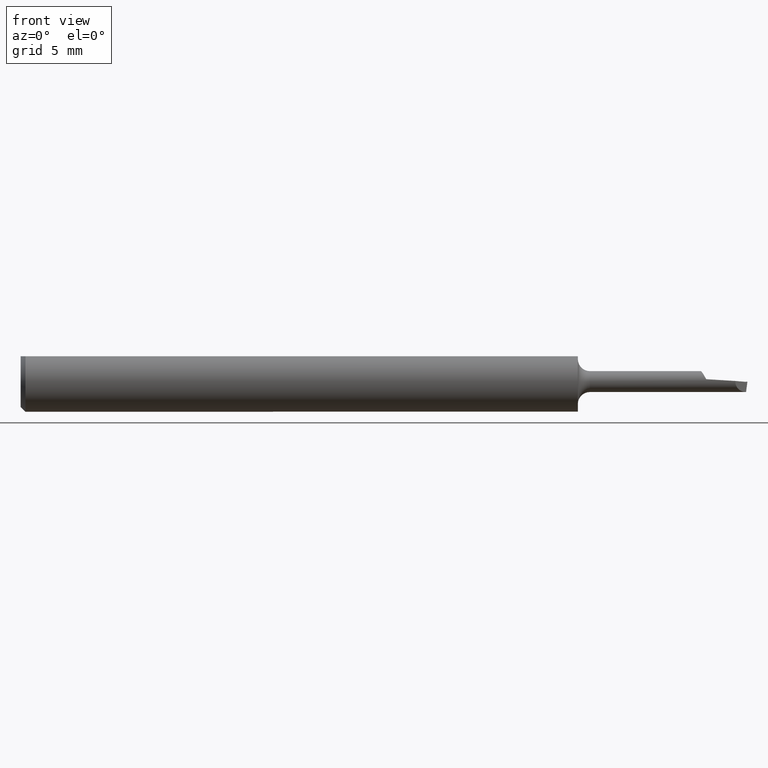
[diagram: clean part render]
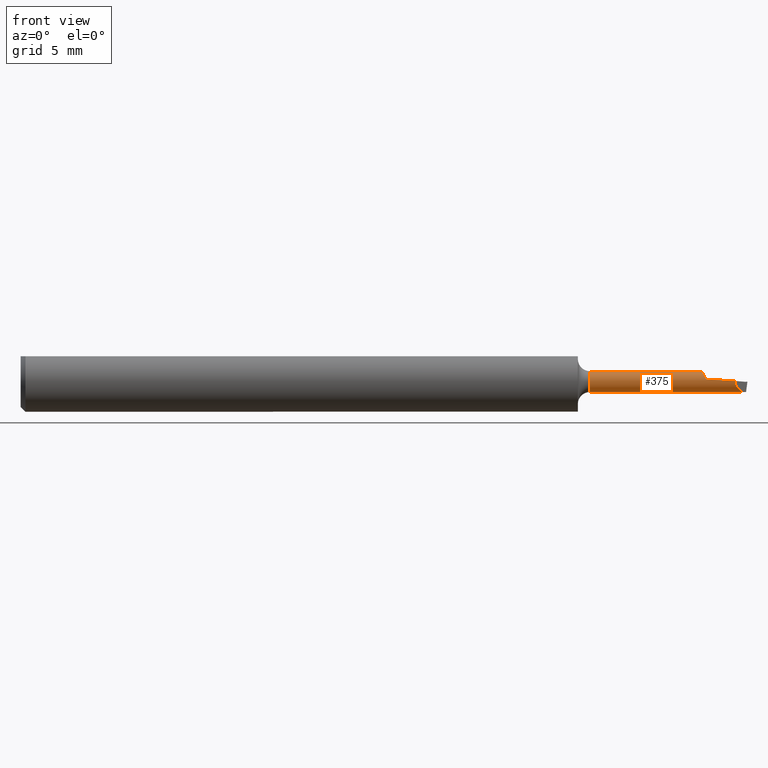
[diagram: same view with one face highlighted and labeled with its STEP entity id]
A machine part, front view. The second image highlights one B-rep face of the part: STEP entity #375.
In plain terms, the highlighted cylindrical surface (edge-blend (fillet) strip) has radius 0.5461 mm, axis along (-1, -0, -0).
Its self-contained STEP definition (entity closure, byte-faithful):
#4 = CARTESIAN_POINT ( 'NONE',  ( 1.404000000000000137, -0.001430936881053231731, 0.02145232900275499330 ) ) ;
#11 = CARTESIAN_POINT ( 'NONE',  ( 1.445131348683456274, -0.02135399945104765954, 0.003140518868011895129 ) ) ;
#12 = ORIENTED_EDGE ( 'NONE', *, *, #134, .F. ) ;
#18 = CARTESIAN_POINT ( 'NONE',  ( 1.405767565616470760, -0.008508376164700823946, 0.02026258715271565813 ) ) ;
#21 = CIRCLE ( 'NONE', #598, 0.02150000000000006420 ) ;
#33 = DIRECTION ( 'NONE',  ( 1.000000000000000000, -0.000000000000000000, -0.000000000000000000 ) ) ;
#51 = DIRECTION ( 'NONE',  ( 0.000000000000000000, 0.000000000000000000, 1.000000000000000000 ) ) ;
#56 = ORIENTED_EDGE ( 'NONE', *, *, #726, .F. ) ;
#66 = VERTEX_POINT ( 'NONE', #4 ) ;
#68 = EDGE_LOOP ( 'NONE', ( #426, #12, #155, #120, #172, #455, #547, #81, #571, #56 ) ) ;
#81 = ORIENTED_EDGE ( 'NONE', *, *, #459, .F. ) ;
#86 = CARTESIAN_POINT ( 'NONE',  ( 0.000000000000000000, 0.000000000000000000, 0.02150000000000002950 ) ) ;
#106 = CARTESIAN_POINT ( 'NONE',  ( 1.425000000000000488, -0.001739341499743084305, -0.02142952848634970334 ) ) ;
#115 = CARTESIAN_POINT ( 'NONE',  ( 1.425000000000000488, 0.000000000000000000, 0.000000000000000000 ) ) ;
#120 = ORIENTED_EDGE ( 'NONE', *, *, #796, .T. ) ;
#134 = EDGE_CURVE ( 'NONE', #429, #676, #211, .T. ) ;
#145 = CARTESIAN_POINT ( 'NONE',  ( 1.425000000000000488, 2.632990618166813195E-18, -0.02150000000000002950 ) ) ;
#146 = CYLINDRICAL_SURFACE ( 'NONE', #482, 0.02150000000000002950 ) ;
#149 = LINE ( 'NONE', #643, #398 ) ;
#155 = ORIENTED_EDGE ( 'NONE', *, *, #390, .T. ) ;
#172 = ORIENTED_EDGE ( 'NONE', *, *, #646, .F. ) ;
#174 = CARTESIAN_POINT ( 'NONE',  ( 1.429772521916677697, -0.0005931283937478291045, -0.02150000000021588462 ) ) ;
#189 = CARTESIAN_POINT ( 'NONE',  ( 1.411853044221901055, -0.01954079743614218351, 0.01074519185527962085 ) ) ;
#197 = AXIS2_PLACEMENT_3D ( 'NONE', #599, #420, #51 ) ;
#205 = CARTESIAN_POINT ( 'NONE',  ( 1.404000000000000137, -0.001430936881053231731, 0.02145232900275499330 ) ) ;
#211 = CIRCLE ( 'NONE', #769, 0.02150000000000002950 ) ;
#219 = EDGE_CURVE ( 'NONE', #325, #435, #229, .T. ) ;
#221 = VERTEX_POINT ( 'NONE', #331 ) ;
#224 = B_SPLINE_CURVE_WITH_KNOTS ( 'NONE', 3,
 ( #106, #666, #174, #790 ),
 .UNSPECIFIED., .F., .F.,
 ( 4, 4 ),
 ( 1.177510931424660416E-05, 0.0001987894760625604363 ),
 .UNSPECIFIED. ) ;
#229 =( BOUNDED_CURVE ( )  B_SPLINE_CURVE ( 2, ( #628, #11, #509 ),
 .UNSPECIFIED., .F., .T. ) 
 B_SPLINE_CURVE_WITH_KNOTS ( ( 3, 3 ),
 ( 0.08309014085609417455, 0.2788747443160921047 ),
 .UNSPECIFIED. ) 
 CURVE ( )  GEOMETRIC_REPRESENTATION_ITEM ( )  RATIONAL_B_SPLINE_CURVE ( ( 0.9808081055425239558, 0.9743343968049049675, 0.9754543227669443262 ) ) 
 REPRESENTATION_ITEM ( '' )  );
#233 =( BOUNDED_CURVE ( )  B_SPLINE_CURVE ( 3, ( #387, #626, #322, #460 ),
 .UNSPECIFIED., .F., .T. ) 
 B_SPLINE_CURVE_WITH_KNOTS ( ( 4, 4 ),
 ( 6.225259102459130389, 7.853981633974480125 ),
 .UNSPECIFIED. ) 
 CURVE ( )  GEOMETRIC_REPRESENTATION_ITEM ( )  RATIONAL_B_SPLINE_CURVE ( ( 1.000000000000000000, 0.7908887178487953307, 0.7908887178487953307, 1.000000000000000000 ) ) 
 REPRESENTATION_ITEM ( '' )  );
#261 = LINE ( 'NONE', #761, #606 ) ;
#277 = VERTEX_POINT ( 'NONE', #687 ) ;
#281 = CARTESIAN_POINT ( 'NONE',  ( 1.475033202637507035, -0.02146393904924248641, 0.001244717032262903289 ) ) ;
#292 = CARTESIAN_POINT ( 'NONE',  ( 0.000000000000000000, 0.000000000000000000, 0.000000000000000000 ) ) ;
#300 = EDGE_CURVE ( 'NONE', #676, #680, #261, .T. ) ;
#314 = DIRECTION ( 'NONE',  ( 0.000000000000000000, 1.776356839400250465E-14, 1.000000000000000000 ) ) ;
#322 = CARTESIAN_POINT ( 'NONE',  ( 1.483316460307294804, -0.01318068137945521516, -0.02149999999999999481 ) ) ;
#324 = DIRECTION ( 'NONE',  ( -1.000000000000000000, -0.000000000000000000, -0.000000000000000000 ) ) ;
#325 = VERTEX_POINT ( 'NONE', #281 ) ;
#331 = CARTESIAN_POINT ( 'NONE',  ( 1.404000000000000137, 0.000000000000000000, 0.02150000000000002950 ) ) ;
#375 = ADVANCED_FACE ( 'NONE', ( #586 ), #146, .T. ) ;
#382 = CARTESIAN_POINT ( 'NONE',  ( 1.409408289388668134, -0.01598937975179732032, 0.01507662555860100027 ) ) ;
#384 = VERTEX_POINT ( 'NONE', #782 ) ;
#387 = CARTESIAN_POINT ( 'NONE',  ( 1.475033202637507035, -0.02146393904924248641, 0.001244717032262903289 ) ) ;
#390 = EDGE_CURVE ( 'NONE', #429, #506, #224, .T. ) ;
#398 = VECTOR ( 'NONE', #33, 39.37007874015748143 ) ;
#399 = CARTESIAN_POINT ( 'NONE',  ( 1.175000000000000488, 0.000000000000000000, 0.000000000000000000 ) ) ;
#400 = DIRECTION ( 'NONE',  ( -1.000000000000000000, -0.000000000000000000, -0.000000000000000000 ) ) ;
#403 = DIRECTION ( 'NONE',  ( 0.000000000000000000, 0.000000000000000000, 1.000000000000000000 ) ) ;
#420 = DIRECTION ( 'NONE',  ( 1.000000000000000000, -0.000000000000000000, -0.000000000000000000 ) ) ;
#426 = ORIENTED_EDGE ( 'NONE', *, *, #300, .F. ) ;
#429 = VERTEX_POINT ( 'NONE', #722 ) ;
#435 = VERTEX_POINT ( 'NONE', #659 ) ;
#455 = ORIENTED_EDGE ( 'NONE', *, *, #219, .T. ) ;
#459 = EDGE_CURVE ( 'NONE', #221, #66, #725, .T. ) ;
#460 = CARTESIAN_POINT ( 'NONE',  ( 1.496497141686749410, 1.280553747030123384E-17, -0.02150000000000006420 ) ) ;
#468 = DIRECTION ( 'NONE',  ( -1.000000000000000000, -0.000000000000000000, -0.000000000000000000 ) ) ;
#482 = AXIS2_PLACEMENT_3D ( 'NONE', #292, #400, #532 ) ;
#506 = VERTEX_POINT ( 'NONE', #674 ) ;
#509 = CARTESIAN_POINT ( 'NONE',  ( 1.414899394003657607, -0.02091346100598579991, 0.004987699745485189157 ) ) ;
#524 = DIRECTION ( 'NONE',  ( -1.000000000000000000, -0.000000000000000000, -0.000000000000000000 ) ) ;
#531 = CARTESIAN_POINT ( 'NONE',  ( 1.175000000000000488, 2.632990618166817432E-18, -0.02150000000000006420 ) ) ;
#532 = DIRECTION ( 'NONE',  ( 0.000000000000000000, 0.000000000000000000, 1.000000000000000000 ) ) ;
#546 = DIRECTION ( 'NONE',  ( 1.000000000000000000, 0.000000000000000000, 0.000000000000000000 ) ) ;
#547 = ORIENTED_EDGE ( 'NONE', *, *, #634, .T. ) ;
#571 = ORIENTED_EDGE ( 'NONE', *, *, #757, .T. ) ;
#586 = FACE_OUTER_BOUND ( 'NONE', #68, .T. ) ;
#598 = AXIS2_PLACEMENT_3D ( 'NONE', #399, #524, #403 ) ;
#599 = CARTESIAN_POINT ( 'NONE',  ( 1.404000000000000137, 0.000000000000000000, 0.000000000000000000 ) ) ;
#606 = VECTOR ( 'NONE', #324, 39.37007874015748143 ) ;
#626 = CARTESIAN_POINT ( 'NONE',  ( 1.474270122702165953, -0.02222701898458379066, -0.01191385700290502857 ) ) ;
#628 = CARTESIAN_POINT ( 'NONE',  ( 1.475033202637507035, -0.02146393904924248988, 0.001244717032262903289 ) ) ;
#630 = CARTESIAN_POINT ( 'NONE',  ( 1.414899394003657607, -0.02091346100598579991, 0.004987699745485189157 ) ) ;
#634 = EDGE_CURVE ( 'NONE', #435, #66, #693, .T. ) ;
#637 = LINE ( 'NONE', #86, #715 ) ;
#643 = CARTESIAN_POINT ( 'NONE',  ( 1.400000000000000133, 0.000000000000000000, -0.02150000000000006420 ) ) ;
#646 = EDGE_CURVE ( 'NONE', #325, #384, #233, .T. ) ;
#659 = CARTESIAN_POINT ( 'NONE',  ( 1.414899394003657607, -0.02091346100598579991, 0.004987699745485189157 ) ) ;
#666 = CARTESIAN_POINT ( 'NONE',  ( 1.427387432899609232, -0.001172397346112140836, -0.02147554487484926167 ) ) ;
#674 = CARTESIAN_POINT ( 'NONE',  ( 1.432154029367860959, 1.333910153156378525E-19, -0.02150000000000006420 ) ) ;
#676 = VERTEX_POINT ( 'NONE', #145 ) ;
#680 = VERTEX_POINT ( 'NONE', #531 ) ;
#687 = CARTESIAN_POINT ( 'NONE',  ( 1.175000000000000488, 0.000000000000000000, 0.02150000000000006420 ) ) ;
#693 = B_SPLINE_CURVE_WITH_KNOTS ( 'NONE', 3,
 ( #630, #189, #382, #18, #763, #205 ),
 .UNSPECIFIED., .F., .F.,
 ( 4, 2, 4 ),
 ( 0.000000000000000000, 0.5000000000000000000, 1.000000000000000000 ),
 .UNSPECIFIED. ) ;
#715 = VECTOR ( 'NONE', #468, 39.37007874015748143 ) ;
#722 = CARTESIAN_POINT ( 'NONE',  ( 1.425000000000000488, -0.001739341499743084305, -0.02142952848634970334 ) ) ;
#725 = CIRCLE ( 'NONE', #197, 0.02150000000000002950 ) ;
#726 = EDGE_CURVE ( 'NONE', #680, #277, #21, .T. ) ;
#757 = EDGE_CURVE ( 'NONE', #221, #277, #637, .T. ) ;
#761 = CARTESIAN_POINT ( 'NONE',  ( 0.000000000000000000, 2.632990618166813195E-18, -0.02150000000000002950 ) ) ;
#763 = CARTESIAN_POINT ( 'NONE',  ( 1.404571596677506085, -0.004606137310228657598, 0.02124053383707312850 ) ) ;
#769 = AXIS2_PLACEMENT_3D ( 'NONE', #115, #546, #314 ) ;
#782 = CARTESIAN_POINT ( 'NONE',  ( 1.496497141686749410, 1.280553747030123384E-17, -0.02150000000000006420 ) ) ;
#790 = CARTESIAN_POINT ( 'NONE',  ( 1.432154029367860959, 1.333910153156378525E-19, -0.02150000000000006420 ) ) ;
#796 = EDGE_CURVE ( 'NONE', #506, #384, #149, .T. ) ;